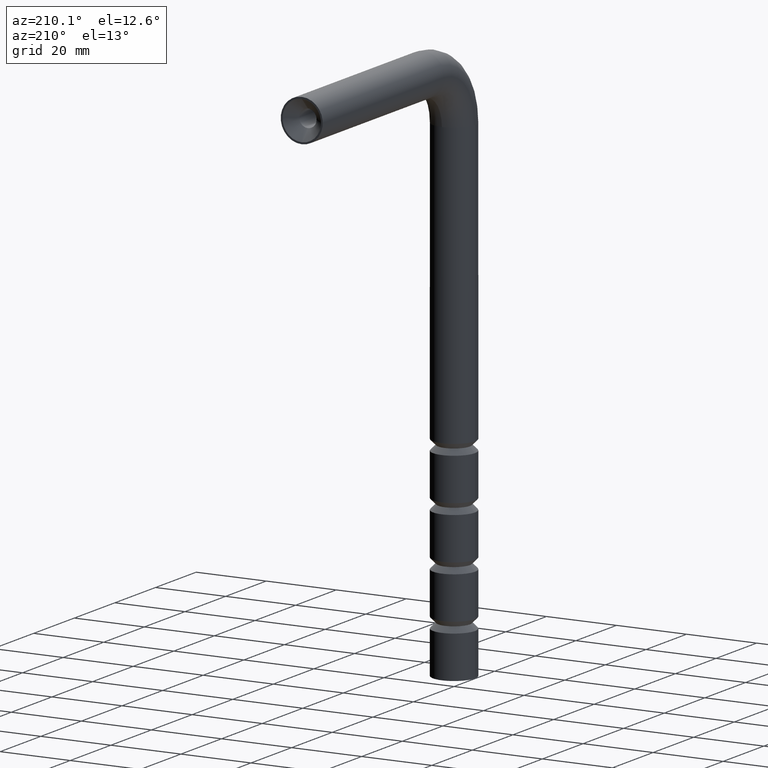
[diagram: clean part render]
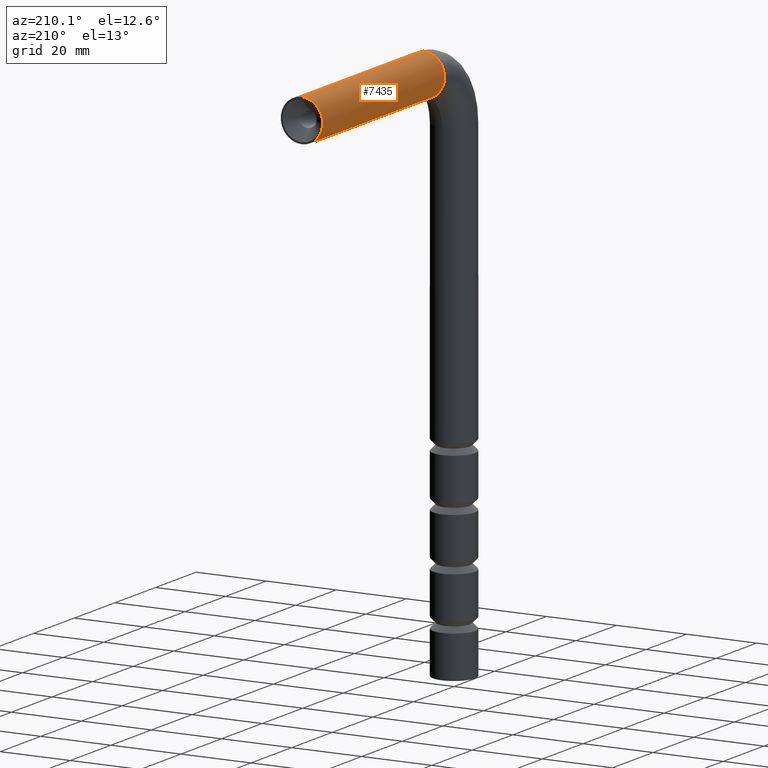
[diagram: same view with one face highlighted and labeled with its STEP entity id]
A machine part, auxiliary view. The second image highlights one B-rep face of the part: STEP entity #7435.
In plain terms, the highlighted cylindrical surface (edge-blend (fillet) strip) has radius 6 mm, axis along (0, -1, 0).
Its self-contained STEP definition (entity closure, byte-faithful):
#313 = DIRECTION ( 'NONE',  ( 0.000000000000000000, 1.000000000000000000, -4.625929269271485914E-16 ) ) ;
#533 = LINE ( 'NONE', #1482, #3080 ) ;
#1275 = DIRECTION ( 'NONE',  ( 0.000000000000000000, 1.000000000000000000, -4.625929269271485914E-16 ) ) ;
#1482 = CARTESIAN_POINT ( 'NONE',  ( 0.000000000000000000, 75.00000000000000000, 149.0000000000000000 ) ) ;
#2462 = DIRECTION ( 'NONE',  ( 1.000000000000000000, 0.000000000000000000, 0.000000000000000000 ) ) ;
#2759 = VERTEX_POINT ( 'NONE', #9906 ) ;
#2803 = CIRCLE ( 'NONE', #12108, 6.000000000000000888 ) ;
#2804 = CARTESIAN_POINT ( 'NONE',  ( 7.347880794884114806E-16, 75.00000000000000000, 161.0000000000000000 ) ) ;
#3080 = VECTOR ( 'NONE', #8515, 1000.000000000000000 ) ;
#3694 = CIRCLE ( 'NONE', #4410, 6.000000000000000888 ) ;
#4243 = AXIS2_PLACEMENT_3D ( 'NONE', #6400, #8280, #12478 ) ;
#4410 = AXIS2_PLACEMENT_3D ( 'NONE', #6470, #313, #2462 ) ;
#4455 = VERTEX_POINT ( 'NONE', #9563 ) ;
#5290 = EDGE_CURVE ( 'NONE', #4455, #11307, #2803, .T. ) ;
#5468 = ORIENTED_EDGE ( 'NONE', *, *, #7299, .T. ) ;
#6182 = ORIENTED_EDGE ( 'NONE', *, *, #7287, .T. ) ;
#6400 = CARTESIAN_POINT ( 'NONE',  ( 0.000000000000000000, 75.00000000000000000, 155.0000000000000000 ) ) ;
#6402 = DIRECTION ( 'NONE',  ( 0.000000000000000000, -1.000000000000000000, 4.625929269271485914E-16 ) ) ;
#6470 = CARTESIAN_POINT ( 'NONE',  ( 0.000000000000000000, 15.00000000000000000, 155.0000000000000284 ) ) ;
#6529 = DIRECTION ( 'NONE',  ( 1.000000000000000000, 0.000000000000000000, 0.000000000000000000 ) ) ;
#7287 = EDGE_CURVE ( 'NONE', #2759, #7691, #3694, .T. ) ;
#7299 = EDGE_CURVE ( 'NONE', #4455, #2759, #533, .T. ) ;
#7435 = ADVANCED_FACE ( 'NONE', ( #8451 ), #10539, .T. ) ;
#7691 = VERTEX_POINT ( 'NONE', #12918 ) ;
#7692 = ORIENTED_EDGE ( 'NONE', *, *, #12655, .F. ) ;
#8280 = DIRECTION ( 'NONE',  ( 0.000000000000000000, -1.000000000000000000, 4.625929269271485914E-16 ) ) ;
#8451 = FACE_OUTER_BOUND ( 'NONE', #11133, .T. ) ;
#8515 = DIRECTION ( 'NONE',  ( 0.000000000000000000, -1.000000000000000000, 4.625929269271485914E-16 ) ) ;
#8809 = ORIENTED_EDGE ( 'NONE', *, *, #5290, .F. ) ;
#9563 = CARTESIAN_POINT ( 'NONE',  ( 0.000000000000000000, 75.00000000000000000, 149.0000000000000000 ) ) ;
#9906 = CARTESIAN_POINT ( 'NONE',  ( 0.000000000000000000, 14.99999999999999645, 149.0000000000000284 ) ) ;
#9933 = VECTOR ( 'NONE', #6402, 1000.000000000000000 ) ;
#10539 = CYLINDRICAL_SURFACE ( 'NONE', #4243, 6.000000000000005329 ) ;
#10734 = LINE ( 'NONE', #11486, #9933 ) ;
#11133 = EDGE_LOOP ( 'NONE', ( #7692, #8809, #5468, #6182 ) ) ;
#11290 = CARTESIAN_POINT ( 'NONE',  ( 0.000000000000000000, 75.00000000000000000, 155.0000000000000000 ) ) ;
#11307 = VERTEX_POINT ( 'NONE', #2804 ) ;
#11486 = CARTESIAN_POINT ( 'NONE',  ( 7.347880794884120722E-16, 75.00000000000000000, 161.0000000000000000 ) ) ;
#12108 = AXIS2_PLACEMENT_3D ( 'NONE', #11290, #1275, #6529 ) ;
#12478 = DIRECTION ( 'NONE',  ( 0.000000000000000000, 0.000000000000000000, -1.000000000000000000 ) ) ;
#12655 = EDGE_CURVE ( 'NONE', #11307, #7691, #10734, .T. ) ;
#12918 = CARTESIAN_POINT ( 'NONE',  ( 7.347880794884114806E-16, 15.00000000000000355, 161.0000000000000284 ) ) ;